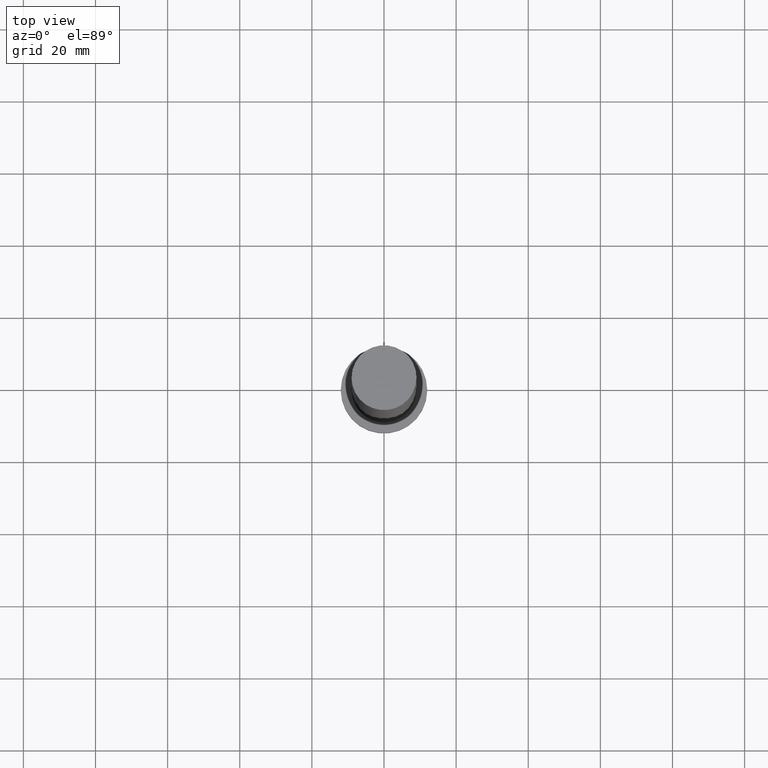
[diagram: clean part render]
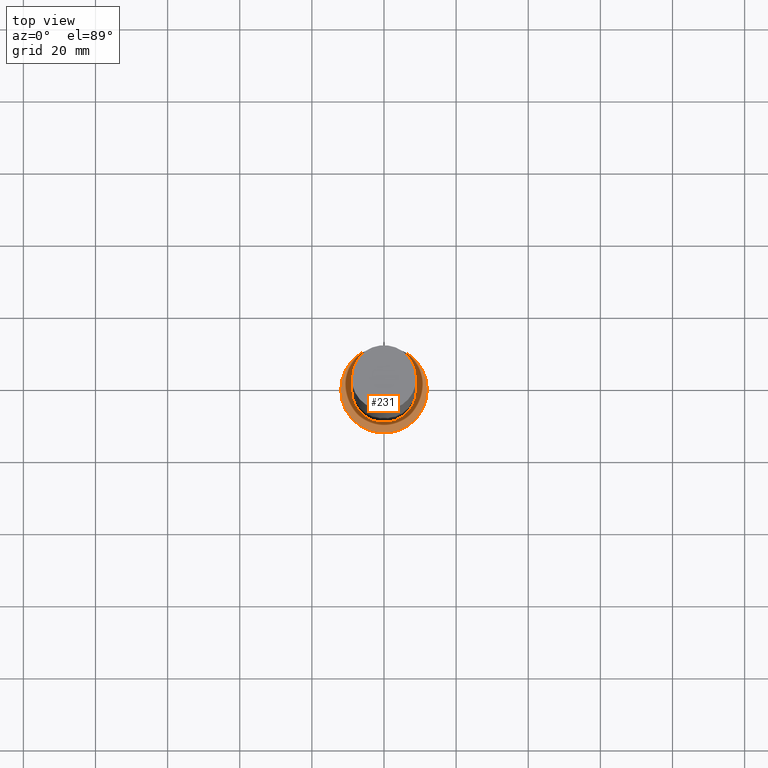
[diagram: same view with one face highlighted and labeled with its STEP entity id]
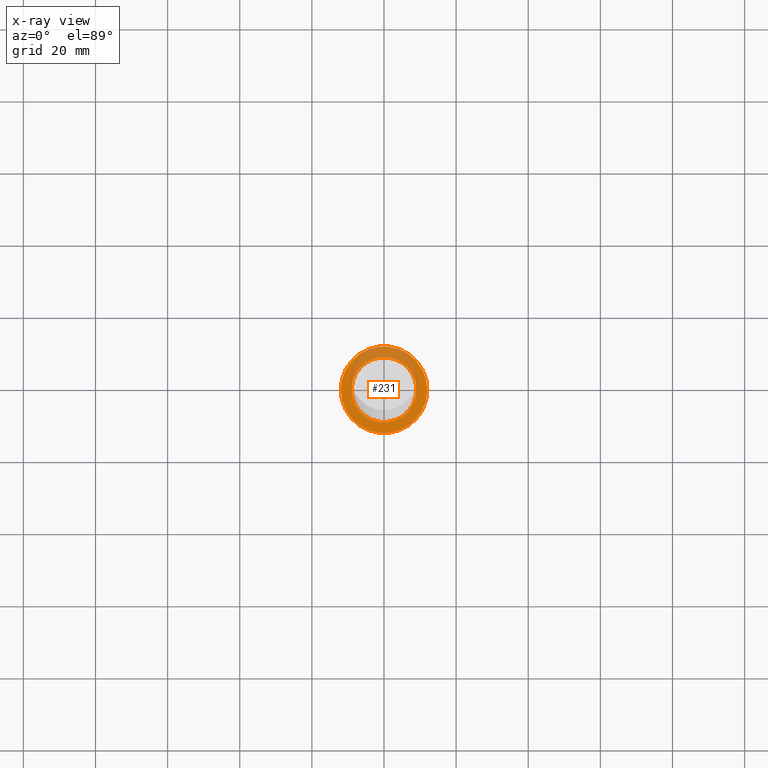
[diagram: x-ray of the same camera — body ghosted, the highlighted face saturated]
A machine part, top view. The second image highlights one B-rep face of the part: STEP entity #231.
The next image is the same camera in x-ray: the body ghosted, the highlighted face saturated — about 30% of this face is hidden behind the body in this view.
In plain terms, the highlighted planar face has unit normal (0, 0, 1).
Its self-contained STEP definition (entity closure, byte-faithful):
#9 = ORIENTED_EDGE ( 'NONE', *, *, #41, .T. ) ;
#11 = VERTEX_POINT ( 'NONE', #198 ) ;
#12 = CARTESIAN_POINT ( 'NONE',  ( 0.000000000000000000, 0.000000000000000000, 7.000000000000000000 ) ) ;
#14 = CIRCLE ( 'NONE', #61, 9.000000000000000000 ) ;
#41 = EDGE_CURVE ( 'NONE', #48, #233, #60, .T. ) ;
#42 = AXIS2_PLACEMENT_3D ( 'NONE', #161, #63, #160 ) ;
#48 = VERTEX_POINT ( 'NONE', #218 ) ;
#60 = CIRCLE ( 'NONE', #189, 12.00000000000000178 ) ;
#61 = AXIS2_PLACEMENT_3D ( 'NONE', #12, #91, #247 ) ;
#63 = DIRECTION ( 'NONE',  ( 0.000000000000000000, 0.000000000000000000, 1.000000000000000000 ) ) ;
#66 = VERTEX_POINT ( 'NONE', #79 ) ;
#76 = CIRCLE ( 'NONE', #172, 9.000000000000000000 ) ;
#79 = CARTESIAN_POINT ( 'NONE',  ( -9.000000000000000000, 0.000000000000000000, 7.000000000000000000 ) ) ;
#87 = DIRECTION ( 'NONE',  ( 1.000000000000000000, 0.000000000000000000, 0.000000000000000000 ) ) ;
#89 = CIRCLE ( 'NONE', #42, 12.00000000000000178 ) ;
#90 = ORIENTED_EDGE ( 'NONE', *, *, #208, .F. ) ;
#91 = DIRECTION ( 'NONE',  ( 0.000000000000000000, 0.000000000000000000, 1.000000000000000000 ) ) ;
#106 = CARTESIAN_POINT ( 'NONE',  ( 0.000000000000000000, 0.000000000000000000, 7.000000000000000000 ) ) ;
#122 = CARTESIAN_POINT ( 'NONE',  ( 0.000000000000000000, 0.000000000000000000, 7.000000000000000000 ) ) ;
#125 = DIRECTION ( 'NONE',  ( 0.000000000000000000, 0.000000000000000000, 1.000000000000000000 ) ) ;
#129 = FACE_OUTER_BOUND ( 'NONE', #143, .T. ) ;
#132 = EDGE_CURVE ( 'NONE', #233, #48, #89, .T. ) ;
#137 = CARTESIAN_POINT ( 'NONE',  ( 0.000000000000000000, 0.000000000000000000, 7.000000000000000000 ) ) ;
#143 = EDGE_LOOP ( 'NONE', ( #244, #9 ) ) ;
#160 = DIRECTION ( 'NONE',  ( 1.000000000000000000, 0.000000000000000000, 0.000000000000000000 ) ) ;
#161 = CARTESIAN_POINT ( 'NONE',  ( 0.000000000000000000, 0.000000000000000000, 7.000000000000000000 ) ) ;
#165 = FACE_BOUND ( 'NONE', #191, .T. ) ;
#172 = AXIS2_PLACEMENT_3D ( 'NONE', #106, #125, #87 ) ;
#173 = DIRECTION ( 'NONE',  ( 0.000000000000000000, 0.000000000000000000, 1.000000000000000000 ) ) ;
#177 = EDGE_CURVE ( 'NONE', #66, #11, #14, .T. ) ;
#183 = DIRECTION ( 'NONE',  ( 1.000000000000000000, 0.000000000000000000, -0.000000000000000000 ) ) ;
#189 = AXIS2_PLACEMENT_3D ( 'NONE', #137, #173, #246 ) ;
#191 = EDGE_LOOP ( 'NONE', ( #241, #90 ) ) ;
#197 = PLANE ( 'NONE',  #245 ) ;
#198 = CARTESIAN_POINT ( 'NONE',  ( 9.000000000000000000, 1.102182119232617714E-15, 7.000000000000000000 ) ) ;
#205 = DIRECTION ( 'NONE',  ( 0.000000000000000000, 0.000000000000000000, 1.000000000000000000 ) ) ;
#208 = EDGE_CURVE ( 'NONE', #11, #66, #76, .T. ) ;
#218 = CARTESIAN_POINT ( 'NONE',  ( 12.00000000000000178, 1.469576158976824144E-15, 7.000000000000000000 ) ) ;
#231 = ADVANCED_FACE ( 'NONE', ( #165, #129 ), #197, .T. ) ;
#233 = VERTEX_POINT ( 'NONE', #248 ) ;
#241 = ORIENTED_EDGE ( 'NONE', *, *, #177, .F. ) ;
#244 = ORIENTED_EDGE ( 'NONE', *, *, #132, .T. ) ;
#245 = AXIS2_PLACEMENT_3D ( 'NONE', #122, #205, #183 ) ;
#246 = DIRECTION ( 'NONE',  ( 1.000000000000000000, 0.000000000000000000, 0.000000000000000000 ) ) ;
#247 = DIRECTION ( 'NONE',  ( 1.000000000000000000, 0.000000000000000000, 0.000000000000000000 ) ) ;
#248 = CARTESIAN_POINT ( 'NONE',  ( -12.00000000000000178, 0.000000000000000000, 7.000000000000000000 ) ) ;